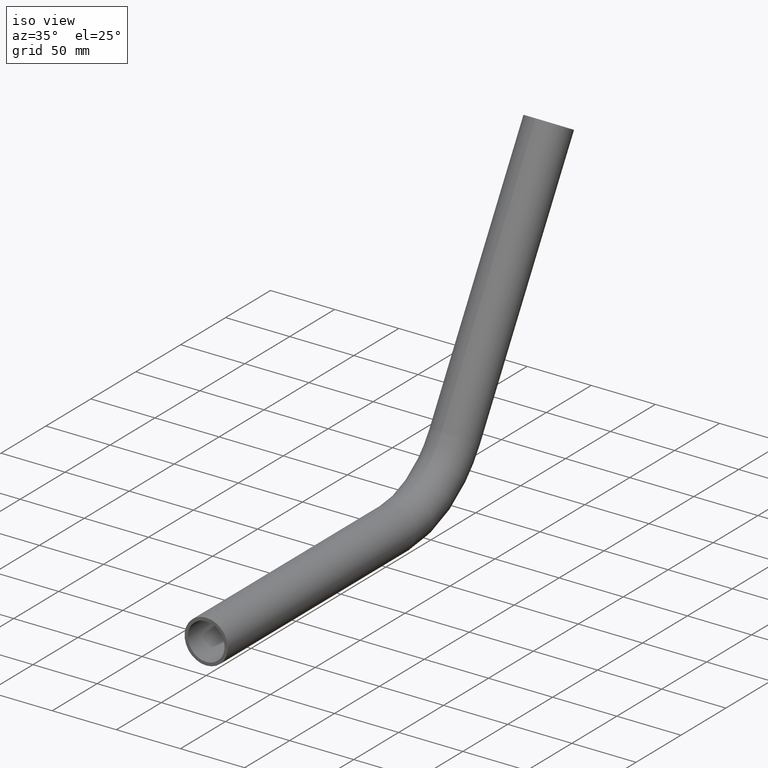
[diagram: clean part render]
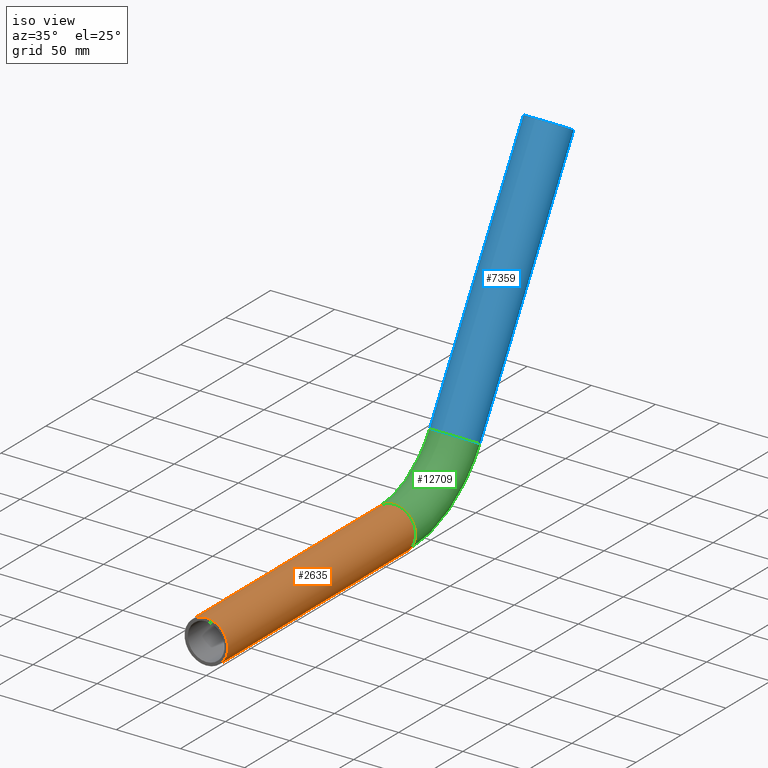
[diagram: same view with three faces highlighted in distinct colors, each labeled with its STEP entity id]
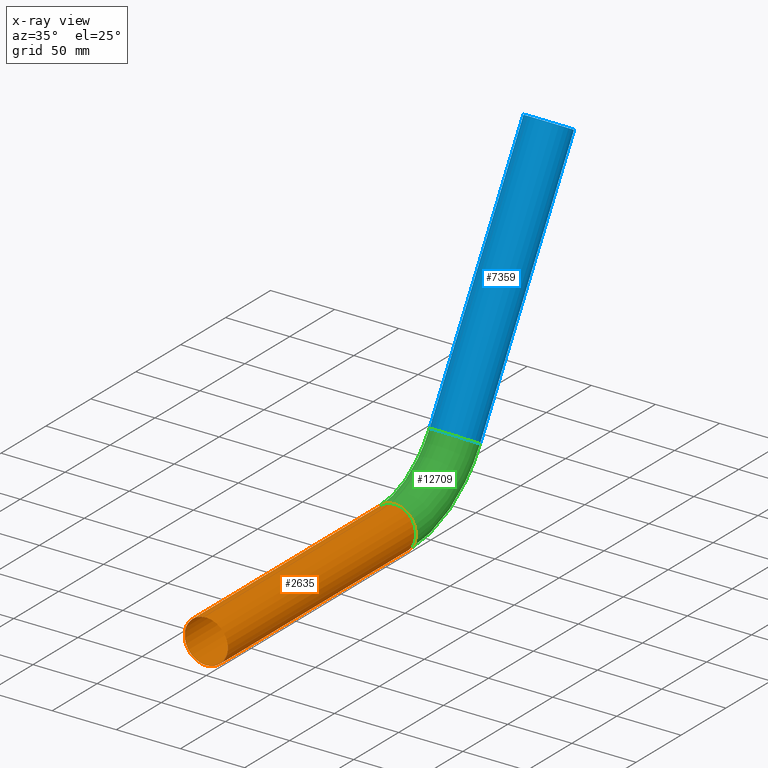
[diagram: x-ray of the same camera — body ghosted, the three highlighted faces saturated]
A machine part, iso view with three faces highlighted in distinct colors.
The next image is the same camera in x-ray (body ghosted, the three faces saturated) — at least one of them is partly hidden behind the body in this view.
Their STEP definitions:

[orange] entity #2635 — the highlighted cylindrical surface (bore or boss wall) has radius 16.85 mm, axis along (-0, -1, 0).
#282 = CARTESIAN_POINT ( 'NONE',  ( 0.000000000000000000, 209.1592955033325723, -7.464487448530533640E-29 ) ) ;
#1074 = CYLINDRICAL_SURFACE ( 'NONE', #8264, 16.85000000000000142 ) ;
#1249 = CIRCLE ( 'NONE', #11316, 16.85000000000000142 ) ;
#1606 = ORIENTED_EDGE ( 'NONE', *, *, #6560, .F. ) ;
#2635 = ADVANCED_FACE ( 'NONE', ( #4638, #4172 ), #1074, .T. ) ;
#3129 = AXIS2_PLACEMENT_3D ( 'NONE', #8941, #9940, #7935 ) ;
#3497 = EDGE_CURVE ( 'NONE', #7468, #7468, #9085, .T. ) ;
#4172 = FACE_OUTER_BOUND ( 'NONE', #5297, .T. ) ;
#4638 = FACE_OUTER_BOUND ( 'NONE', #12701, .T. ) ;
#4964 = ORIENTED_EDGE ( 'NONE', *, *, #3497, .T. ) ;
#5297 = EDGE_LOOP ( 'NONE', ( #4964 ) ) ;
#5604 = CARTESIAN_POINT ( 'NONE',  ( 0.000000000000000000, 0.000000000000000000, 16.85000000000000142 ) ) ;
#6560 = EDGE_CURVE ( 'NONE', #7019, #7019, #1249, .T. ) ;
#7019 = VERTEX_POINT ( 'NONE', #8728 ) ;
#7065 = DIRECTION ( 'NONE',  ( 0.000000000000000000, 0.000000000000000000, 1.000000000000000000 ) ) ;
#7430 = DIRECTION ( 'NONE',  ( 0.000000000000000000, 0.000000000000000000, -1.000000000000000000 ) ) ;
#7468 = VERTEX_POINT ( 'NONE', #5604 ) ;
#7580 = CARTESIAN_POINT ( 'NONE',  ( 0.000000000000000000, 209.1592955033325723, -7.464487448530533640E-29 ) ) ;
#7935 = DIRECTION ( 'NONE',  ( 0.000000000000000000, 0.000000000000000000, 1.000000000000000000 ) ) ;
#8264 = AXIS2_PLACEMENT_3D ( 'NONE', #7580, #10033, #7430 ) ;
#8728 = CARTESIAN_POINT ( 'NONE',  ( 0.000000000000000000, 209.1592955033325723, 16.85000000000000142 ) ) ;
#8941 = CARTESIAN_POINT ( 'NONE',  ( 0.000000000000000000, 0.000000000000000000, 0.000000000000000000 ) ) ;
#9085 = CIRCLE ( 'NONE', #3129, 16.85000000000000142 ) ;
#9940 = DIRECTION ( 'NONE',  ( 0.000000000000000000, 1.000000000000000000, 0.000000000000000000 ) ) ;
#10033 = DIRECTION ( 'NONE',  ( -0.000000000000000000, -1.000000000000000000, 3.568805025168771619E-31 ) ) ;
#11018 = DIRECTION ( 'NONE',  ( 0.000000000000000000, 1.000000000000000000, 0.000000000000000000 ) ) ;
#11316 = AXIS2_PLACEMENT_3D ( 'NONE', #282, #11018, #7065 ) ;
#12701 = EDGE_LOOP ( 'NONE', ( #1606 ) ) ;

[blue] entity #7359 — the highlighted cylindrical surface (bore or boss wall) has radius 16.85 mm, axis along (0, 0.5, 0.866).
#1217 = DIRECTION ( 'NONE',  ( 0.000000000000000000, -0.8660254037844399289, 0.4999999999999978906 ) ) ;
#2185 = EDGE_CURVE ( 'NONE', #7983, #7983, #2558, .T. ) ;
#2558 = CIRCLE ( 'NONE', #8671, 16.85000000000000142 ) ;
#3348 = EDGE_LOOP ( 'NONE', ( #5731 ) ) ;
#3860 = CARTESIAN_POINT ( 'NONE',  ( 0.000000000000000000, 276.7092769985188738, 39.00000000000014211 ) ) ;
#4034 = DIRECTION ( 'NONE',  ( 0.000000000000000000, 0.4999999999999979461, 0.8660254037844399289 ) ) ;
#4055 = EDGE_CURVE ( 'NONE', #12125, #12125, #8597, .T. ) ;
#5100 = FACE_OUTER_BOUND ( 'NONE', #3348, .T. ) ;
#5731 = ORIENTED_EDGE ( 'NONE', *, *, #2185, .F. ) ;
#7072 = DIRECTION ( 'NONE',  ( 0.000000000000000000, -0.8660254037844399289, 0.4999999999999978906 ) ) ;
#7322 = CARTESIAN_POINT ( 'NONE',  ( 0.000000000000000000, 381.2889247501847194, 220.1372633435426849 ) ) ;
#7359 = ADVANCED_FACE ( 'NONE', ( #8050, #5100 ), #10792, .T. ) ;
#7361 = DIRECTION ( 'NONE',  ( 0.000000000000000000, -0.8660254037844400399, 0.4999999999999975575 ) ) ;
#7661 = CARTESIAN_POINT ( 'NONE',  ( 0.000000000000000000, 366.6963966964169117, 228.5622633435426678 ) ) ;
#7794 = ORIENTED_EDGE ( 'NONE', *, *, #4055, .T. ) ;
#7983 = VERTEX_POINT ( 'NONE', #7661 ) ;
#8050 = FACE_OUTER_BOUND ( 'NONE', #10961, .T. ) ;
#8597 = CIRCLE ( 'NONE', #11295, 16.85000000000000497 ) ;
#8671 = AXIS2_PLACEMENT_3D ( 'NONE', #7322, #12298, #7361 ) ;
#9519 = AXIS2_PLACEMENT_3D ( 'NONE', #3860, #4034, #1217 ) ;
#9669 = CARTESIAN_POINT ( 'NONE',  ( 0.000000000000000000, 262.1167489447510661, 47.42500000000011084 ) ) ;
#10792 = CYLINDRICAL_SURFACE ( 'NONE', #9519, 16.85000000000000497 ) ;
#10961 = EDGE_LOOP ( 'NONE', ( #7794 ) ) ;
#11069 = CARTESIAN_POINT ( 'NONE',  ( 0.000000000000000000, 276.7092769985188738, 39.00000000000014211 ) ) ;
#11295 = AXIS2_PLACEMENT_3D ( 'NONE', #11069, #12010, #7072 ) ;
#12010 = DIRECTION ( 'NONE',  ( 0.000000000000000000, 0.4999999999999980016, 0.8660254037844398178 ) ) ;
#12125 = VERTEX_POINT ( 'NONE', #9669 ) ;
#12298 = DIRECTION ( 'NONE',  ( 0.000000000000000000, 0.4999999999999980016, 0.8660254037844398178 ) ) ;

[green] entity #12709 — the highlighted toroidal blend (fillet) surface has major radius 78 mm and minor (blend) radius 16.85 mm.
#282 = CARTESIAN_POINT ( 'NONE',  ( 0.000000000000000000, 209.1592955033325723, -7.464487448530533640E-29 ) ) ;
#1249 = CIRCLE ( 'NONE', #11316, 16.85000000000000142 ) ;
#1529 = ORIENTED_EDGE ( 'NONE', *, *, #6560, .T. ) ;
#2329 = CARTESIAN_POINT ( 'NONE',  ( 0.000000000000000000, 209.1592955033325723, 78.00000000000000000 ) ) ;
#4055 = EDGE_CURVE ( 'NONE', #12125, #12125, #8597, .T. ) ;
#4233 = FACE_OUTER_BOUND ( 'NONE', #12271, .T. ) ;
#4349 = ORIENTED_EDGE ( 'NONE', *, *, #4055, .F. ) ;
#6560 = EDGE_CURVE ( 'NONE', #7019, #7019, #1249, .T. ) ;
#7019 = VERTEX_POINT ( 'NONE', #8728 ) ;
#7065 = DIRECTION ( 'NONE',  ( 0.000000000000000000, 0.000000000000000000, 1.000000000000000000 ) ) ;
#7072 = DIRECTION ( 'NONE',  ( 0.000000000000000000, -0.8660254037844399289, 0.4999999999999978906 ) ) ;
#8148 = EDGE_LOOP ( 'NONE', ( #1529 ) ) ;
#8597 = CIRCLE ( 'NONE', #11295, 16.85000000000000497 ) ;
#8728 = CARTESIAN_POINT ( 'NONE',  ( 0.000000000000000000, 209.1592955033325723, 16.85000000000000142 ) ) ;
#9669 = CARTESIAN_POINT ( 'NONE',  ( 0.000000000000000000, 262.1167489447510661, 47.42500000000011084 ) ) ;
#10548 = FACE_OUTER_BOUND ( 'NONE', #8148, .T. ) ;
#10715 = TOROIDAL_SURFACE ( 'NONE', #11211, 78.00000000000000000, 16.85000000000000142 ) ;
#11018 = DIRECTION ( 'NONE',  ( 0.000000000000000000, 1.000000000000000000, 0.000000000000000000 ) ) ;
#11069 = CARTESIAN_POINT ( 'NONE',  ( 0.000000000000000000, 276.7092769985188738, 39.00000000000014211 ) ) ;
#11211 = AXIS2_PLACEMENT_3D ( 'NONE', #2329, #12492, #11293 ) ;
#11293 = DIRECTION ( 'NONE',  ( 0.000000000000000000, 0.000000000000000000, -1.000000000000000000 ) ) ;
#11295 = AXIS2_PLACEMENT_3D ( 'NONE', #11069, #12010, #7072 ) ;
#11316 = AXIS2_PLACEMENT_3D ( 'NONE', #282, #11018, #7065 ) ;
#12010 = DIRECTION ( 'NONE',  ( 0.000000000000000000, 0.4999999999999980016, 0.8660254037844398178 ) ) ;
#12125 = VERTEX_POINT ( 'NONE', #9669 ) ;
#12271 = EDGE_LOOP ( 'NONE', ( #4349 ) ) ;
#12492 = DIRECTION ( 'NONE',  ( 1.000000000000000000, 0.000000000000000000, -0.000000000000000000 ) ) ;
#12709 = ADVANCED_FACE ( 'NONE', ( #10548, #4233 ), #10715, .T. ) ;